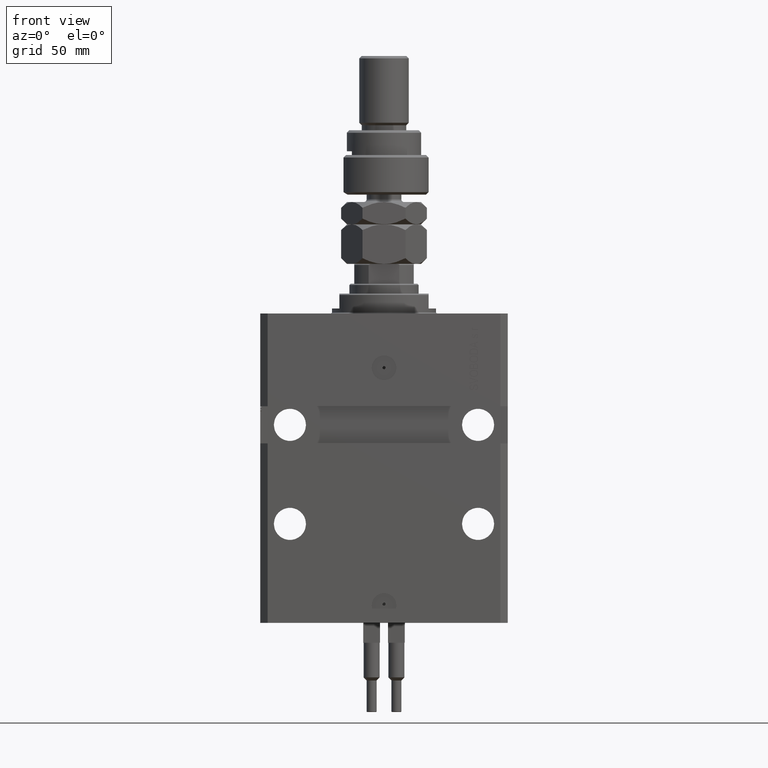
[diagram: clean part render]
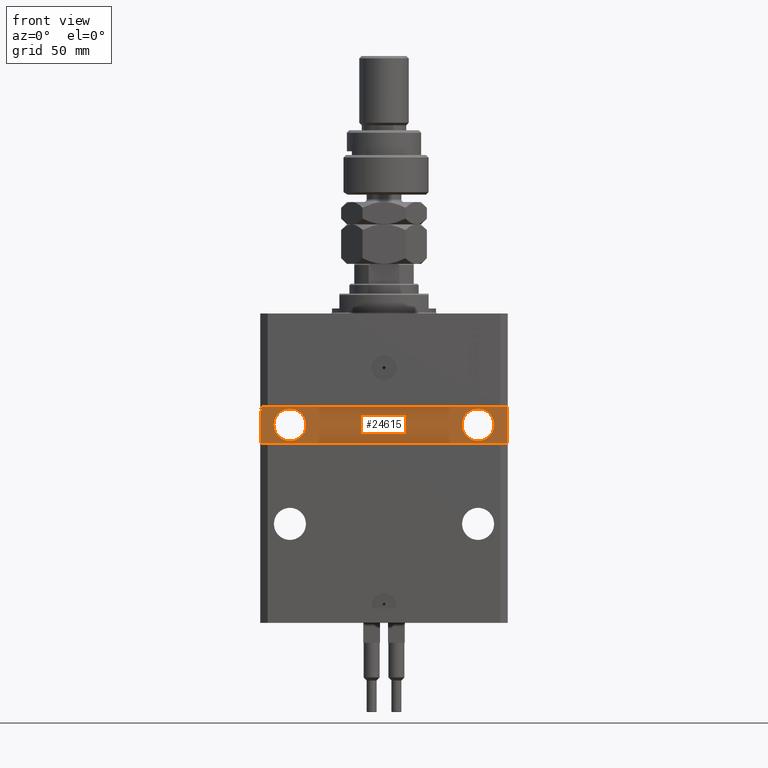
[diagram: same view with one face highlighted and labeled with its STEP entity id]
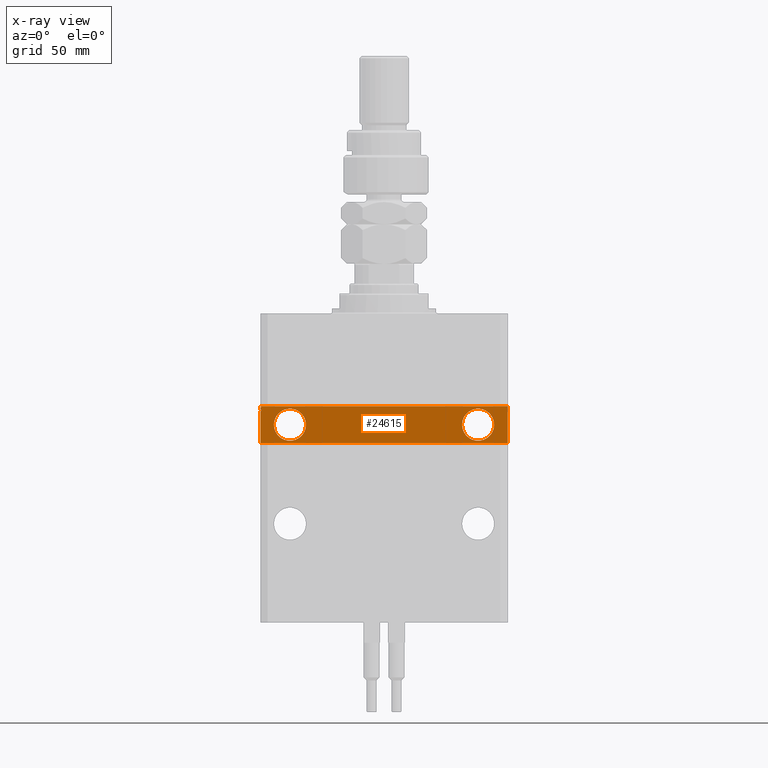
[diagram: x-ray of the same camera — body ghosted, the highlighted face saturated]
A machine part, front view. The second image highlights one B-rep face of the part: STEP entity #24615.
The next image is the same camera in x-ray: the body ghosted, the highlighted face saturated — about 0% of this face is hidden behind the body in this view.
In plain terms, the highlighted planar face has unit normal (0, -1, 0).
Its self-contained STEP definition (entity closure, byte-faithful):
#1803 = AXIS2_PLACEMENT_3D ( 'NONE', #19934, #16002, #48520 ) ;
#2026 = VERTEX_POINT ( 'NONE', #10439 ) ;
#2165 = DIRECTION ( 'NONE',  ( 1.000000000000000000, 0.000000000000000000, 0.000000000000000000 ) ) ;
#2178 = CARTESIAN_POINT ( 'NONE',  ( -50.00000000000001421, -32.50000000000000711, -37.50000000000000711 ) ) ;
#2311 = VECTOR ( 'NONE', #34171, 1000.000000000000000 ) ;
#2567 = DIRECTION ( 'NONE',  ( 1.101411730780568590E-16, -1.000000000000000000, 0.000000000000000000 ) ) ;
#2677 = VERTEX_POINT ( 'NONE', #2178 ) ;
#3048 = CARTESIAN_POINT ( 'NONE',  ( 4.616128571667027759E-15, -32.50000000000000000, 0.000000000000000000 ) ) ;
#3370 = ORIENTED_EDGE ( 'NONE', *, *, #5740, .F. ) ;
#3377 = CARTESIAN_POINT ( 'NONE',  ( -49.50000000000000711, -32.49999999999999289, -37.62144886363635976 ) ) ;
#3637 = LINE ( 'NONE', #3377, #17290 ) ;
#3878 = DIRECTION ( 'NONE',  ( 1.101411730780568590E-16, -1.000000000000000000, 0.000000000000000000 ) ) ;
#5072 = LINE ( 'NONE', #21068, #27215 ) ;
#5212 = LINE ( 'NONE', #37203, #38781 ) ;
#5488 = EDGE_CURVE ( 'NONE', #2026, #38420, #27370, .T. ) ;
#5740 = EDGE_CURVE ( 'NONE', #38586, #46722, #28983, .T. ) ;
#6474 = DIRECTION ( 'NONE',  ( 1.387778780781445676E-16, -1.000000000000000000, 0.000000000000000000 ) ) ;
#6505 = CARTESIAN_POINT ( 'NONE',  ( -37.99999999999998579, -32.50000000000000711, -45.00000000000000711 ) ) ;
#6745 = LINE ( 'NONE', #19301, #47143 ) ;
#7055 = VECTOR ( 'NONE', #17970, 1000.000000000000000 ) ;
#7235 = CARTESIAN_POINT ( 'NONE',  ( -49.49999999999999289, -32.50000000000000711, -39.43474004052496440 ) ) ;
#7277 = EDGE_CURVE ( 'NONE', #16737, #18964, #20688, .T. ) ;
#7552 = EDGE_LOOP ( 'NONE', ( #20265, #3370 ) ) ;
#8814 = VERTEX_POINT ( 'NONE', #42640 ) ;
#8842 = ORIENTED_EDGE ( 'NONE', *, *, #40420, .F. ) ;
#9592 = CARTESIAN_POINT ( 'NONE',  ( -44.49999999999998579, -32.50000000000000711, -45.00000000000000711 ) ) ;
#10439 = CARTESIAN_POINT ( 'NONE',  ( -50.00000000000001421, -32.50000000000000711, -37.99999999999999289 ) ) ;
#10816 = ORIENTED_EDGE ( 'NONE', *, *, #10936, .F. ) ;
#10936 = EDGE_CURVE ( 'NONE', #8814, #38420, #14518, .T. ) ;
#10971 = ORIENTED_EDGE ( 'NONE', *, *, #22813, .F. ) ;
#11058 = CARTESIAN_POINT ( 'NONE',  ( -50.00000000000001421, -32.50000000000000711, -38.87066340383893959 ) ) ;
#11455 = CARTESIAN_POINT ( 'NONE',  ( 44.50000000000001421, -32.50000000000000000, -45.00000000000000000 ) ) ;
#12329 = CARTESIAN_POINT ( 'NONE',  ( -49.50000000000000711, -32.50000000000000711, -37.62144886363635976 ) ) ;
#12335 = VERTEX_POINT ( 'NONE', #12329 ) ;
#12763 = VERTEX_POINT ( 'NONE', #7235 ) ;
#12969 = DIRECTION ( 'NONE',  ( 0.000000000000000000, 0.000000000000000000, -1.000000000000000000 ) ) ;
#14518 = LINE ( 'NONE', #29712, #2311 ) ;
#14645 = VERTEX_POINT ( 'NONE', #25830 ) ;
#14926 = DIRECTION ( 'NONE',  ( 1.000000000000000000, 0.000000000000000000, 0.000000000000000000 ) ) ;
#15666 = CARTESIAN_POINT ( 'NONE',  ( -31.49999999999998579, -32.50000000000000711, -45.00000000000000711 ) ) ;
#16002 = DIRECTION ( 'NONE',  ( 8.806446732139697737E-17, -1.000000000000000000, 1.232595164407830672E-32 ) ) ;
#16737 = VERTEX_POINT ( 'NONE', #9592 ) ;
#17290 = VECTOR ( 'NONE', #23564, 1000.000000000000000 ) ;
#17970 = DIRECTION ( 'NONE',  ( 1.000000000000000000, 0.000000000000000000, 0.000000000000000000 ) ) ;
#18327 = DIRECTION ( 'NONE',  ( 3.791485858024926499E-13, 5.261743621399925654E-29, 1.000000000000000000 ) ) ;
#18913 = EDGE_CURVE ( 'NONE', #2677, #42388, #35081, .T. ) ;
#18964 = VERTEX_POINT ( 'NONE', #15666 ) ;
#19186 = DIRECTION ( 'NONE',  ( 8.806446732139697737E-17, -1.000000000000000000, 1.232595164407830672E-32 ) ) ;
#19203 = ORIENTED_EDGE ( 'NONE', *, *, #30158, .F. ) ;
#19301 = CARTESIAN_POINT ( 'NONE',  ( -49.50000000000000711, -32.49999999999999289, -37.99999999999999289 ) ) ;
#19433 = EDGE_CURVE ( 'NONE', #31589, #36167, #37086, .T. ) ;
#19570 = CARTESIAN_POINT ( 'NONE',  ( -50.00000000000001421, -32.50000000000000711, -52.50000000000000000 ) ) ;
#19804 = ORIENTED_EDGE ( 'NONE', *, *, #23990, .T. ) ;
#19934 = CARTESIAN_POINT ( 'NONE',  ( 38.00000000000001421, -32.50000000000000000, -45.00000000000000000 ) ) ;
#20013 = VERTEX_POINT ( 'NONE', #39098 ) ;
#20265 = ORIENTED_EDGE ( 'NONE', *, *, #24075, .F. ) ;
#20648 = LINE ( 'NONE', #47679, #21084 ) ;
#20688 = CIRCLE ( 'NONE', #29058, 6.499999999999999112 ) ;
#21068 = CARTESIAN_POINT ( 'NONE',  ( -50.00000000000001421, -32.50000000000000711, -52.50000000000000000 ) ) ;
#21084 = VECTOR ( 'NONE', #24577, 1000.000000000000000 ) ;
#21151 = ORIENTED_EDGE ( 'NONE', *, *, #18913, .T. ) ;
#21941 = FACE_BOUND ( 'NONE', #42445, .T. ) ;
#22210 = PLANE ( 'NONE',  #37043 ) ;
#22813 = EDGE_CURVE ( 'NONE', #12335, #42388, #5212, .T. ) ;
#22987 = FACE_BOUND ( 'NONE', #7552, .T. ) ;
#23550 = CARTESIAN_POINT ( 'NONE',  ( -37.99999999999998579, -32.50000000000000711, -45.00000000000000711 ) ) ;
#23564 = DIRECTION ( 'NONE',  ( 0.000000000000000000, 0.000000000000000000, -1.000000000000000000 ) ) ;
#23990 = EDGE_CURVE ( 'NONE', #14645, #20013, #35154, .T. ) ;
#24075 = EDGE_CURVE ( 'NONE', #46722, #38586, #27779, .T. ) ;
#24577 = DIRECTION ( 'NONE',  ( -1.000000000000000000, -1.387778780781445676E-16, -1.387778780781445676E-16 ) ) ;
#24615 = ADVANCED_FACE ( 'NONE', ( #22987, #21941, #30851 ), #22210, .T. ) ;
#24803 = VECTOR ( 'NONE', #43377, 1000.000000000000000 ) ;
#25830 = CARTESIAN_POINT ( 'NONE',  ( 49.99999999999999289, -32.49999999999999289, -52.49999999999998579 ) ) ;
#25992 = ORIENTED_EDGE ( 'NONE', *, *, #31675, .T. ) ;
#27215 = VECTOR ( 'NONE', #37063, 1000.000000000000000 ) ;
#27370 = LINE ( 'NONE', #48089, #24803 ) ;
#27479 = CARTESIAN_POINT ( 'NONE',  ( -50.00000000000001421, -32.50000000000000711, -39.43474002179300442 ) ) ;
#27779 = CIRCLE ( 'NONE', #1803, 6.499999999999999112 ) ;
#28560 = AXIS2_PLACEMENT_3D ( 'NONE', #23550, #3878, #14926 ) ;
#28983 = CIRCLE ( 'NONE', #49946, 6.499999999999999112 ) ;
#29058 = AXIS2_PLACEMENT_3D ( 'NONE', #6505, #2567, #46639 ) ;
#29712 = CARTESIAN_POINT ( 'NONE',  ( -49.50000000000001421, -32.50000000000001421, -38.87066340383893959 ) ) ;
#30158 = EDGE_CURVE ( 'NONE', #18964, #16737, #41969, .T. ) ;
#30188 = DIRECTION ( 'NONE',  ( 0.000000000000000000, 0.000000000000000000, 1.000000000000000000 ) ) ;
#30338 = DIRECTION ( 'NONE',  ( -1.000000000000000000, -0.000000000000000000, -0.000000000000000000 ) ) ;
#30712 = CARTESIAN_POINT ( 'NONE',  ( 49.99999999999999289, -32.49999999999999289, -52.49999999999998579 ) ) ;
#30851 = FACE_OUTER_BOUND ( 'NONE', #49705, .T. ) ;
#31352 = VERTEX_POINT ( 'NONE', #43548 ) ;
#31589 = VERTEX_POINT ( 'NONE', #27479 ) ;
#31675 = EDGE_CURVE ( 'NONE', #20013, #2677, #20648, .T. ) ;
#34171 = DIRECTION ( 'NONE',  ( -1.000000000000000000, -0.000000000000000000, -0.000000000000000000 ) ) ;
#34321 = CARTESIAN_POINT ( 'NONE',  ( -49.50000000000016342, -32.50000000000000711, -39.86910993535713743 ) ) ;
#34597 = EDGE_CURVE ( 'NONE', #31352, #2026, #6745, .T. ) ;
#34829 = CARTESIAN_POINT ( 'NONE',  ( -50.00000000000001421, -32.50000000000000711, -37.50000000000000711 ) ) ;
#35081 = LINE ( 'NONE', #34829, #36930 ) ;
#35154 = LINE ( 'NONE', #30712, #48717 ) ;
#36167 = VERTEX_POINT ( 'NONE', #19570 ) ;
#36544 = EDGE_CURVE ( 'NONE', #12763, #8814, #50072, .T. ) ;
#36764 = ORIENTED_EDGE ( 'NONE', *, *, #34597, .T. ) ;
#36930 = VECTOR ( 'NONE', #38780, 1000.000000000000000 ) ;
#37043 = AXIS2_PLACEMENT_3D ( 'NONE', #3048, #6474, #46089 ) ;
#37063 = DIRECTION ( 'NONE',  ( 1.000000000000000000, 1.387778780781445676E-16, 1.387778780781445676E-16 ) ) ;
#37086 = LINE ( 'NONE', #48893, #44500 ) ;
#37203 = CARTESIAN_POINT ( 'NONE',  ( -49.50000000000000711, -32.49999999999999289, -37.62144886363635976 ) ) ;
#37469 = ORIENTED_EDGE ( 'NONE', *, *, #19433, .T. ) ;
#38420 = VERTEX_POINT ( 'NONE', #11058 ) ;
#38586 = VERTEX_POINT ( 'NONE', #46619 ) ;
#38780 = DIRECTION ( 'NONE',  ( 0.000000000000000000, 0.000000000000000000, -1.000000000000000000 ) ) ;
#38781 = VECTOR ( 'NONE', #50522, 1000.000000000000000 ) ;
#39098 = CARTESIAN_POINT ( 'NONE',  ( 49.99999999999999289, -32.49999999999999289, -37.49999999999999289 ) ) ;
#39131 = CARTESIAN_POINT ( 'NONE',  ( 38.00000000000001421, -32.50000000000000000, -45.00000000000000000 ) ) ;
#40392 = ORIENTED_EDGE ( 'NONE', *, *, #5488, .T. ) ;
#40420 = EDGE_CURVE ( 'NONE', #31589, #12763, #40882, .T. ) ;
#40882 = LINE ( 'NONE', #49003, #7055 ) ;
#41969 = CIRCLE ( 'NONE', #28560, 6.499999999999999112 ) ;
#42388 = VERTEX_POINT ( 'NONE', #42944 ) ;
#42445 = EDGE_LOOP ( 'NONE', ( #19203, #46652 ) ) ;
#42483 = EDGE_CURVE ( 'NONE', #36167, #14645, #5072, .T. ) ;
#42640 = CARTESIAN_POINT ( 'NONE',  ( -49.49999999999977973, -32.50000000000000711, -38.87066337907741342 ) ) ;
#42799 = ORIENTED_EDGE ( 'NONE', *, *, #45504, .T. ) ;
#42944 = CARTESIAN_POINT ( 'NONE',  ( -50.00000000000001421, -32.50000000000000711, -37.62144886363636687 ) ) ;
#43377 = DIRECTION ( 'NONE',  ( 0.000000000000000000, 0.000000000000000000, -1.000000000000000000 ) ) ;
#43548 = CARTESIAN_POINT ( 'NONE',  ( -49.50000000000000711, -32.50000000000000711, -37.99999999999999289 ) ) ;
#44500 = VECTOR ( 'NONE', #12969, 1000.000000000000000 ) ;
#45504 = EDGE_CURVE ( 'NONE', #12335, #31352, #3637, .T. ) ;
#46089 = DIRECTION ( 'NONE',  ( 1.000000000000000000, 1.387778780781445676E-16, 0.000000000000000000 ) ) ;
#46619 = CARTESIAN_POINT ( 'NONE',  ( 31.50000000000001421, -32.50000000000000000, -45.00000000000000000 ) ) ;
#46639 = DIRECTION ( 'NONE',  ( 1.000000000000000000, 0.000000000000000000, 0.000000000000000000 ) ) ;
#46652 = ORIENTED_EDGE ( 'NONE', *, *, #7277, .F. ) ;
#46722 = VERTEX_POINT ( 'NONE', #11455 ) ;
#47143 = VECTOR ( 'NONE', #30338, 1000.000000000000000 ) ;
#47679 = CARTESIAN_POINT ( 'NONE',  ( 49.99999999999999289, -32.49999999999999289, -37.49999999999999289 ) ) ;
#48089 = CARTESIAN_POINT ( 'NONE',  ( -50.00000000000001421, -32.50000000000000711, -37.50000000000000711 ) ) ;
#48520 = DIRECTION ( 'NONE',  ( 1.000000000000000000, 0.000000000000000000, 0.000000000000000000 ) ) ;
#48717 = VECTOR ( 'NONE', #30188, 1000.000000000000000 ) ;
#48893 = CARTESIAN_POINT ( 'NONE',  ( -50.00000000000001421, -32.50000000000000711, -37.50000000000000711 ) ) ;
#48901 = VECTOR ( 'NONE', #18327, 1000.000000000000000 ) ;
#49003 = CARTESIAN_POINT ( 'NONE',  ( -49.50000000000001421, -32.50000000000000711, -39.43474002179300442 ) ) ;
#49705 = EDGE_LOOP ( 'NONE', ( #40392, #10816, #49814, #8842, #37469, #51462, #19804, #25992, #21151, #10971, #42799, #36764 ) ) ;
#49814 = ORIENTED_EDGE ( 'NONE', *, *, #36544, .F. ) ;
#49946 = AXIS2_PLACEMENT_3D ( 'NONE', #39131, #19186, #2165 ) ;
#50072 = LINE ( 'NONE', #34321, #48901 ) ;
#50522 = DIRECTION ( 'NONE',  ( -1.000000000000000000, -0.000000000000000000, -0.000000000000000000 ) ) ;
#51462 = ORIENTED_EDGE ( 'NONE', *, *, #42483, .T. ) ;